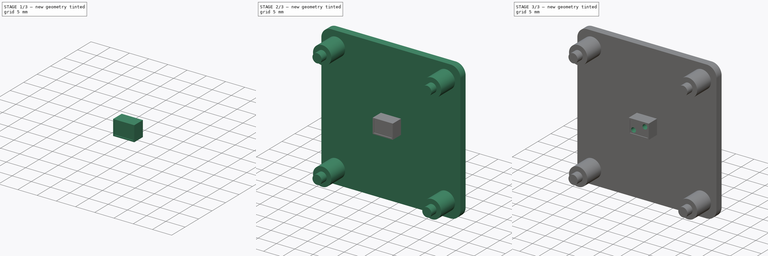
[diagram: build sequence overview — one tinted view per stage of 3, left to right]
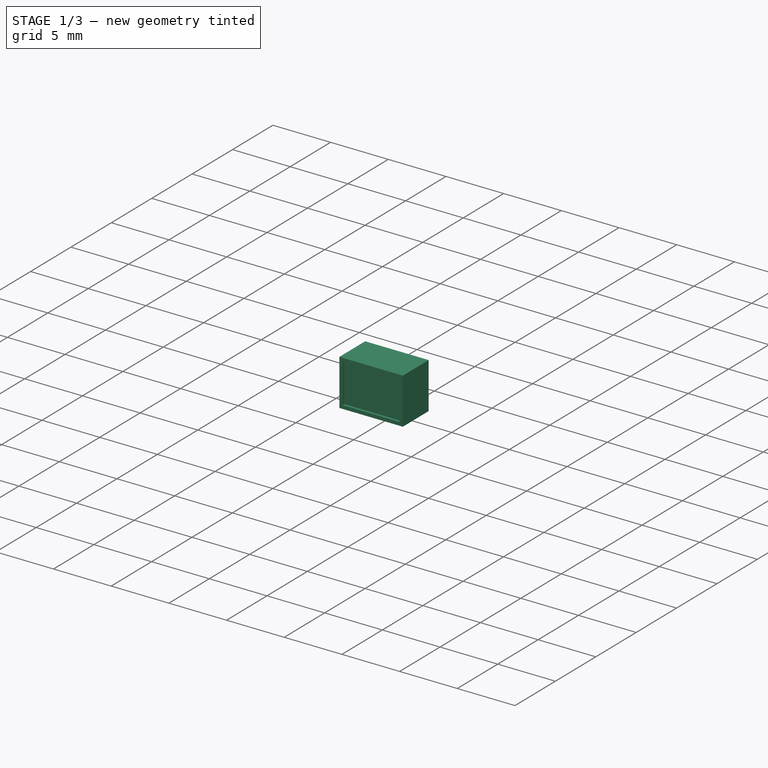
[diagram: stage 1 of 3 — iso view after this stage's code; geometry added in this stage tinted green]
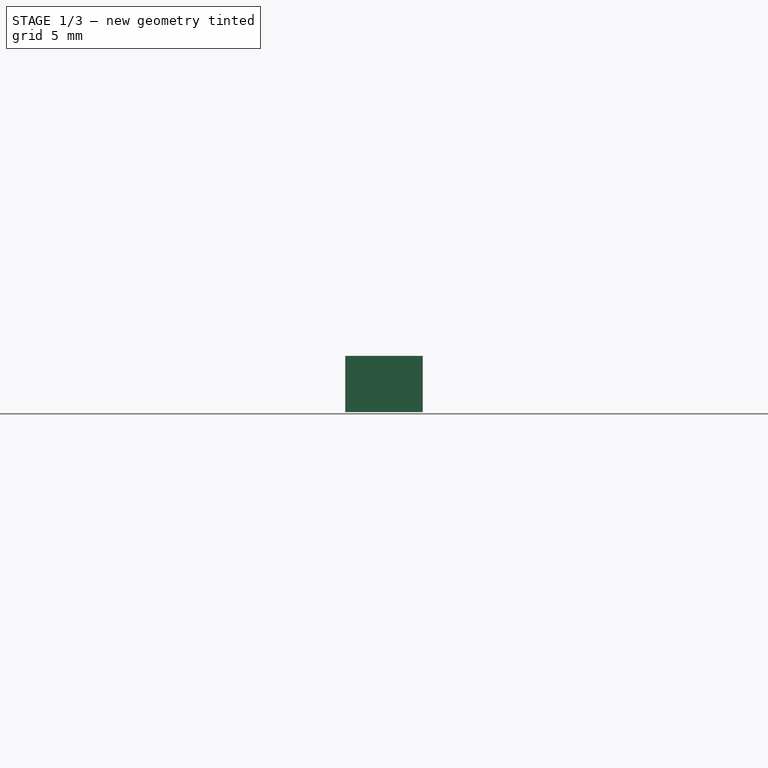
[diagram: stage 1 of 3 — front view after this stage's code; geometry added in this stage tinted green]
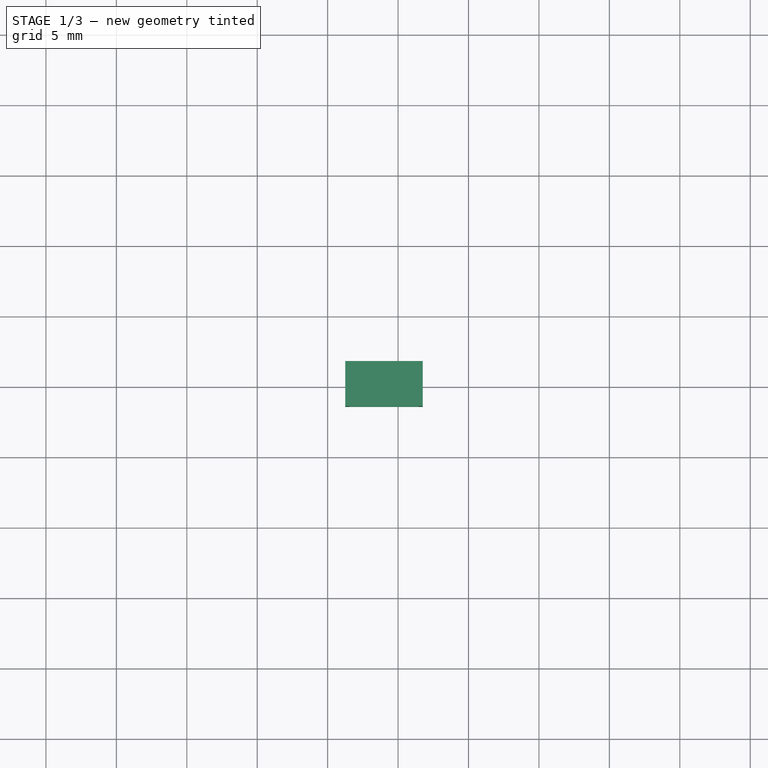
[diagram: stage 1 of 3 — top view after this stage's code; geometry added in this stage tinted green]
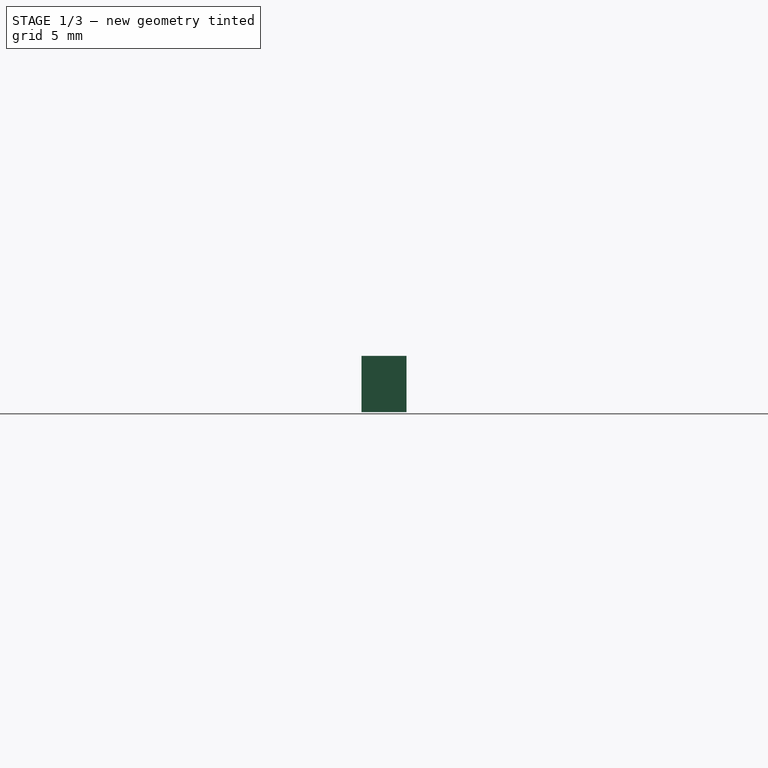
[diagram: stage 1 of 3 — right view after this stage's code; geometry added in this stage tinted green]
FCSTD DOCUMENT  (FreeCAD 1.0R39109 (Git))
Label: Flowcell3
License: All rights reserved
LicenseURL: http://en.wikipedia.org/wiki/All_rights_reserved
objects: Sketcher::SketchObject×9, Part::Feature×7, PartDesign::Pad×6, PartDesign::ShapeBinder×4, PartDesign::Pocket×1, PartDesign::Plane×1, PartDesign::Body×1, App::Part×1
note: 52 computed .brp shape members not serialized (recipe doc carries the construction recipe); baked Part::Feature solids carry a one-line shape summary decoded from their .brp

FEATURE [Part::Feature] Part__Feature  label="Raspberry Pi HQ Camera v2"
  shape: bbox 38 x 1.4 x 38 mm, 22 faces (baked)
FEATURE [Part::Feature] Part__Feature001  label="Raspberry Pi HQ Camera v003"
  shape: bbox 24 x 10.2 x 16.01 mm, 96 faces (baked)
FEATURE [Part::Feature] Part__Feature002  label="Raspberry Pi HQ Camera v004"
  shape: bbox 24 x 1.5 x 5.408 mm, 8 faces (baked)
FEATURE [Part::Feature] Part__Feature003  label="Raspberry Pi HQ Camera v005"
  shape: bbox 37.4 x 11.72 x 40.15 mm, 140 faces (baked)
FEATURE [Part::Feature] Part__Feature004  label="Raspberry Pi HQ Camera v006"
  shape: bbox 30.65 x 13.45 x 30.65 mm, 91 faces (baked)
FEATURE [Part::Feature] Part__Feature005  label="Raspberry Pi HQ Camera v007"
  shape: bbox 6.5 x 1 x 4.5 mm, 6 faces (baked)
FEATURE [Part::Feature] Part__Feature006  label="Raspberry Pi HQ Camera v008"
  shape: bbox 7.5 x 0.5 x 5.5 mm, 6 faces (baked)
FEATURE [PartDesign::ShapeBinder] CopyPart__Feature006
  TraceSupport = false
FEATURE [Sketcher::SketchObject] Sketch
  ArcFitTolerance = 1e-06
  AttachmentSupport = -> [CopyPart__Feature006]
  ExternalGeometry = -> [CopyPart__Feature006]
  FullyConstrained = true
  MakeInternals = false
  MapMode = 5
  Placement = pos=(0,3.6,0) rot=(0,0.707107,0.707107;3.14159rad)
  sketch-geometry (13):
    g0: GeomPoint X=-19 Y=21.75 Z=0
    g1: GeomPoint X=-22.75 Y=19 Z=0
    g2: GeomPoint X=-19 Y=19 Z=0
    g3: LineSegment StartX=-21.75 StartY=21 StartZ=0 EndX=-21.75 EndY=17 EndZ=0
    g4: LineSegment StartX=-21.75 StartY=17 StartZ=0 EndX=-16.25 EndY=17 EndZ=0
    g5: LineSegment StartX=-16.25 StartY=17 StartZ=0 EndX=-16.25 EndY=21 EndZ=0
    g6: LineSegment StartX=-16.25 StartY=21 StartZ=0 EndX=-21.75 EndY=21 EndZ=0
    g7: GeomPoint [constr] X=-19 Y=19 Z=0
    g8: LineSegment StartX=-21.45 StartY=20.7 StartZ=0 EndX=-21.45 EndY=17.3 EndZ=0
    g9: LineSegment StartX=-21.45 StartY=17.3 StartZ=0 EndX=-16.55 EndY=17.3 EndZ=0
    g10: LineSegment StartX=-16.55 StartY=17.3 StartZ=0 EndX=-16.55 EndY=20.7 EndZ=0
    g11: LineSegment StartX=-16.55 StartY=20.7 StartZ=0 EndX=-21.45 EndY=20.7 EndZ=0
    g12: GeomPoint [constr] X=-19 Y=19 Z=0
  constraints (28):
    c: Symmetric(g-3,g-3,g0)
    c: Symmetric(g-4,g-4,g1)
    c: Coincident(g3,g4)
    c: Coincident(g4,g5)
    c: Coincident(g5,g6)
    c: Coincident(g6,g3)
    c: Vertical(g3)
    c: Vertical(g5)
    c: Horizontal(g4)
    c: Horizontal(g6)
    c: Symmetric(g5,g3,g7)
    c: Coincident(g7,g2)
    c: DistanceX(g6,g6) = 5.5
    c: DistanceY(g3,g3) = 4
    c: Coincident(g8,g9)
    c: Coincident(g9,g10)
    c: Coincident(g10,g11)
    c: Coincident(g11,g8)
    c: Vertical(g8)
    c: Vertical(g10)
    c: Horizontal(g9)
    c: Horizontal(g11)
    c: Symmetric(g10,g8,g12)
    c: Coincident(g12,g2)
    c: Distance(g8,g3) = 0.3
    c: Distance(g11,g6) = 0.3
    c: Vertical(g0,g2)
    c: Horizontal(g1,g2)
FEATURE [PartDesign::ShapeBinder] ShapeBinder
  Support = -> [Part__Feature]
  TraceSupport = false
FEATURE [PartDesign::ShapeBinder] ShapeBinder001
  Support = -> [Part__Feature]
  TraceSupport = false
FEATURE [PartDesign::ShapeBinder] ShapeBinder002
  Support = -> [Part__Feature]
  TraceSupport = false
FEATURE [PartDesign::Pad] Pad
  Direction = (0,1,-2e-16)
  Length = 0.2
  Length2 = 10
  Profile = -> Sketch [Edge6,Edge2,Edge1,Edge5,Edge4,Edge8,Edge7,Edge3]
  ReferenceAxis = -> Sketch [N_Axis]
  Suppressed = false
  Type = 0
FEATURE [Sketcher::SketchObject] Sketch001
  ArcFitTolerance = 1e-06
  AttachmentSupport = -> [Pad]
  ExternalGeometry = -> [Pad]
  FullyConstrained = false
  MakeInternals = false
  MapMode = 5
  Placement = pos=(0,3.8,0) rot=(0,0.707107,0.707107;3.14159rad)
  sketch-geometry (3):
    g0: LineSegment StartX=-21.75 StartY=17 StartZ=0 EndX=-16.25 EndY=17 EndZ=0
    g1: LineSegment StartX=-16.25 StartY=17 StartZ=0 EndX=-16.25 EndY=21 EndZ=0
    g2: LineSegment StartX=-16.25 StartY=21 StartZ=0 EndX=-21.75 EndY=21 EndZ=0
  constraints (6):
    c: Coincident(g0,g1)
    c: Coincident(g1,g2)
    c: Vertical(g1)
    c: Horizontal(g0)
    c: Horizontal(g2)
    c: Coincident(g0,g-6)
FEATURE [PartDesign::Pad] Pad001
  BaseFeature = -> Pad
  Direction = (0,1,0)
  Length = 3
  Length2 = 10
  Profile = -> Pad [Edge12,Edge10,Edge7,Edge4]
  Suppressed = false
  Type = 0
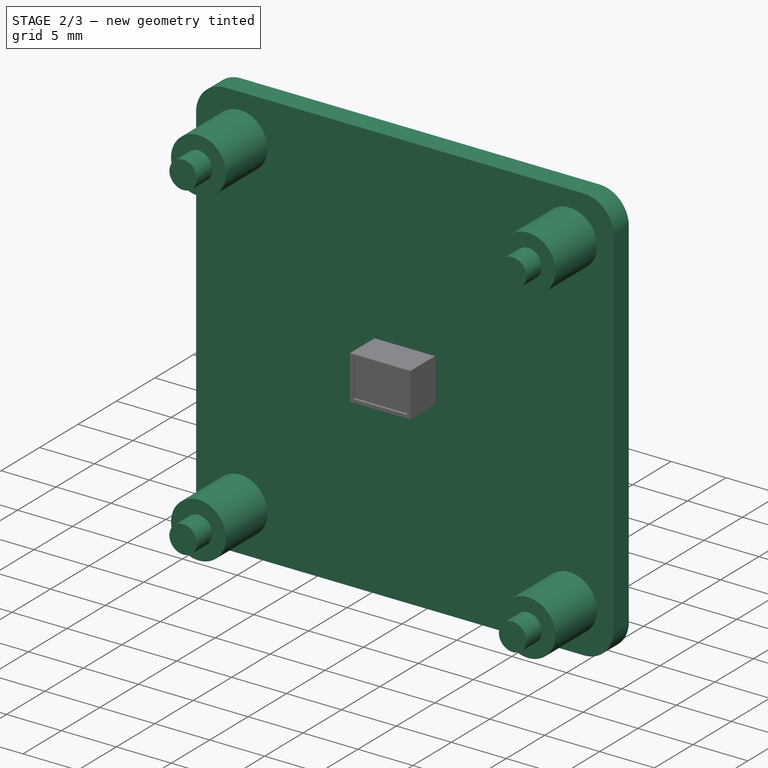
[diagram: stage 2 of 3 — iso view after this stage's code; geometry added in this stage tinted green]
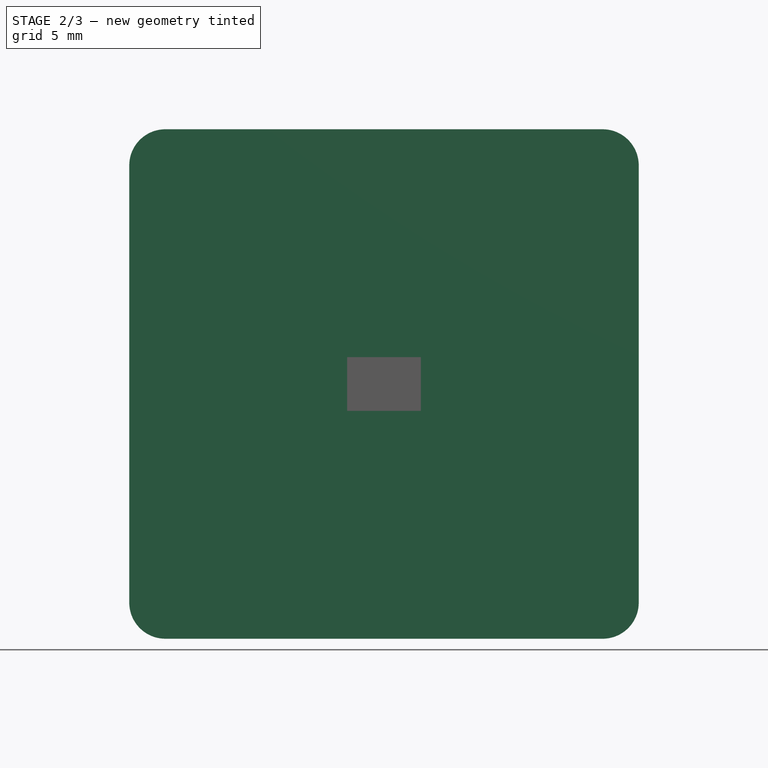
[diagram: stage 2 of 3 — front view after this stage's code; geometry added in this stage tinted green]
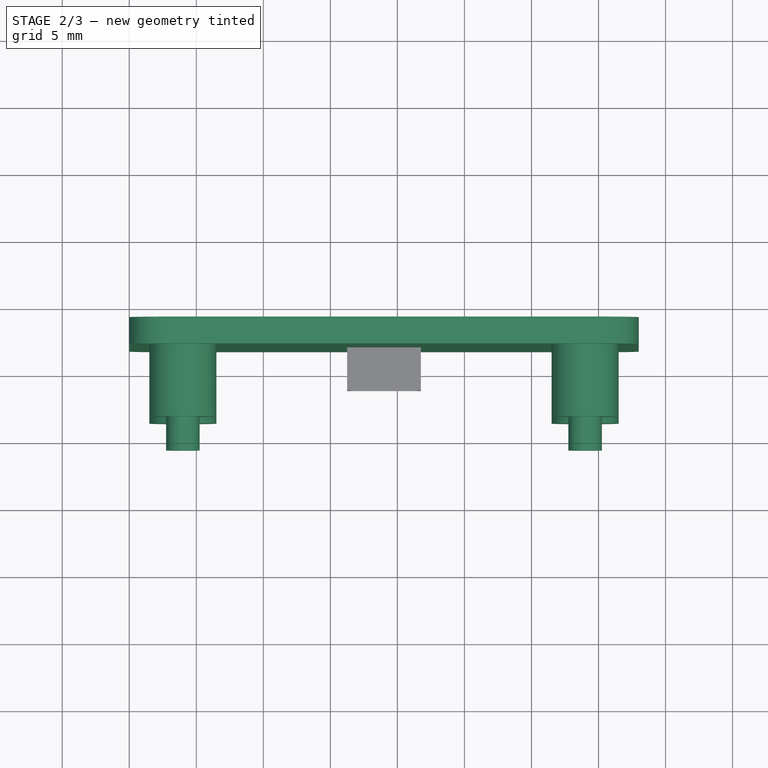
[diagram: stage 2 of 3 — top view after this stage's code; geometry added in this stage tinted green]
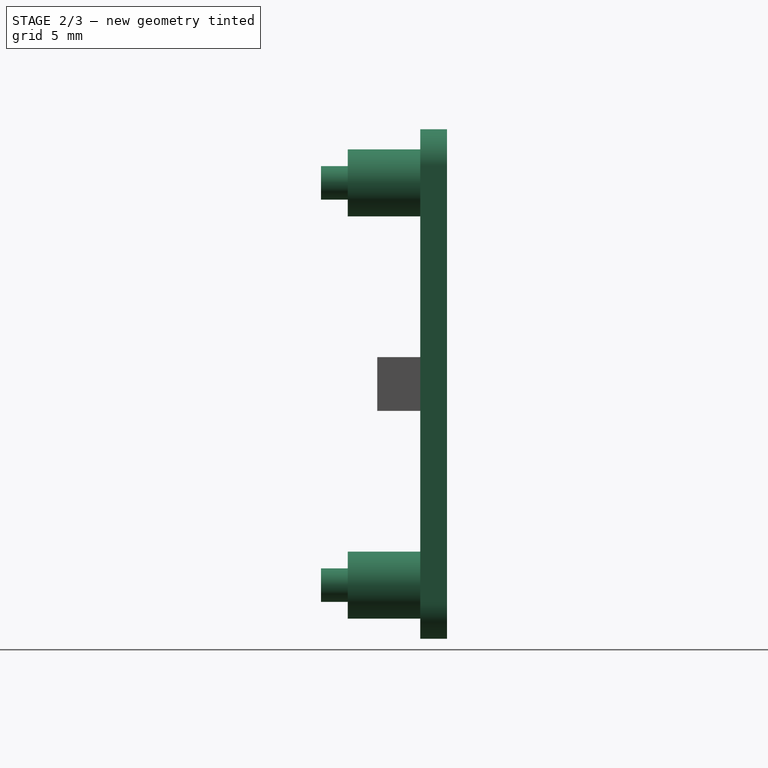
[diagram: stage 2 of 3 — right view after this stage's code; geometry added in this stage tinted green]
FEATURE [Sketcher::SketchObject] Sketch002
  ArcFitTolerance = 1e-06
  AttachmentSupport = -> [Pad001]
  FullyConstrained = true
  MakeInternals = false
  MapMode = 5
  Placement = pos=(0,6.8,0) rot=(0,0.707107,0.707107;3.14159rad)
FEATURE [Sketcher::SketchObject] Sketch003
  ArcFitTolerance = 1e-06
  AttachmentSupport = -> [Pad001]
  ExternalGeometry = -> [Pad001]
  FullyConstrained = false
  MakeInternals = false
  MapMode = 5
  Placement = pos=(0,6.8,0) rot=(0,0.707107,0.707107;3.14159rad)
  sketch-geometry (16):
    g0: LineSegment StartX=-38 StartY=35.3077 StartZ=0 EndX=-38 EndY=2.6923 EndZ=0
    g1: LineSegment StartX=-35.3077 StartY=4.707e-13 StartZ=0 EndX=-2.6923 EndY=4.707e-13 EndZ=0
    g2: LineSegment StartX=-4.707e-13 StartY=2.6923 StartZ=0 EndX=-4.707e-13 EndY=35.3077 EndZ=0
    g3: LineSegment StartX=-2.6923 StartY=38 StartZ=0 EndX=-35.3077 EndY=38 EndZ=0
    g4: GeomPoint [constr] X=-19 Y=19 Z=0
    g5: LineSegment StartX=-21.75 StartY=17 StartZ=0 EndX=-16.25 EndY=21 EndZ=0
    g6: LineSegment StartX=-21.75 StartY=21 StartZ=0 EndX=-16.25 EndY=17 EndZ=0
    g7: GeomPoint X=-19 Y=19 Z=0
    g8: ArcOfCircle CenterX=-2.6923 CenterY=35.3077 CenterZ=0 NormalX=0 NormalY=0 NormalZ=1 AngleXU=0 Radius=2.6923 StartAngle=-2.0615e-12 EndAngle=1.5708
    g9: GeomPoint [constr] X=0 Y=38 Z=0
    g10: ArcOfCircle CenterX=-35.3077 CenterY=35.3077 CenterZ=0 NormalX=0 NormalY=0 NormalZ=1 AngleXU=0 Radius=2.6923 StartAngle=1.5708 EndAngle=3.14159
    g11: GeomPoint [constr] X=-38 Y=38 Z=0
    g12: ArcOfCircle CenterX=-35.3077 CenterY=2.6923 CenterZ=0 NormalX=0 NormalY=0 NormalZ=1 AngleXU=0 Radius=2.6923 StartAngle=3.14159 EndAngle=4.71239
    g13: GeomPoint [constr] X=-38 Y=0 Z=0
    g14: ArcOfCircle CenterX=-2.6923 CenterY=2.6923 CenterZ=0 NormalX=0 NormalY=0 NormalZ=1 AngleXU=0 Radius=2.6923 StartAngle=4.71239 EndAngle=6.28319
    g15: GeomPoint [constr] X=0 Y=0 Z=0
  constraints (31):
    c: Vertical(g0)
    c: Vertical(g2)
    c: Horizontal(g1)
    c: Horizontal(g3)
    c: Symmetric(g15,g11,g4)
    c: Coincident(g15,g-1)
    c: Coincident(g5,g-6)
    c: Coincident(g5,g-4)
    c: Coincident(g6,g-6)
    c: Coincident(g6,g-5)
    c: Symmetric(g6,g6,g7)
    c: Coincident(g4,g7)
    c: PointOnObject(g9,g2)
    c: PointOnObject(g9,g3)
    c: Tangent(g2,g8) = -1.5708
    c: Tangent(g3,g8) = -1.5708
    c: PointOnObject(g11,g0)
    c: PointOnObject(g11,g3)
    c: Tangent(g0,g10) = -1.5708
    c: Tangent(g3,g10) = -1.5708
    c: PointOnObject(g13,g0)
    c: PointOnObject(g13,g1)
    c: Tangent(g0,g12) = -1.5708
    c: Tangent(g1,g12) = -1.5708
    c: Equal(g10,g8)
    c: Equal(g10,g12)
    c: PointOnObject(g15,g1)
    c: PointOnObject(g15,g2)
    c: Tangent(g1,g14) = -1.5708
    c: Tangent(g2,g14) = -1.5708
    c: Equal(g12,g14)
FEATURE [PartDesign::Pad] Pad002
  BaseFeature = -> Pad001
  Direction = (0,1,-2e-16)
  Length = 2
  Length2 = 10
  Profile = -> Sketch003 [Edge1,Edge8,Edge7,Edge6,Edge5,Edge4,Edge3,Edge2]
  ReferenceAxis = -> Sketch003 [N_Axis]
  Suppressed = false
  Type = 0
FEATURE [Sketcher::SketchObject] Sketch004
  ArcFitTolerance = 1e-06
  AttachmentSupport = -> [Pad002]
  ExternalGeometry = -> [ShapeBinder001,ShapeBinder]
  FullyConstrained = false
  MakeInternals = false
  MapMode = 5
  Placement = pos=(0,6.8,0) rot=(1,0,0;1.5708rad)
  sketch-geometry (8):
    g0: Circle CenterX=4 CenterY=34 CenterZ=0 NormalX=0 NormalY=0 NormalZ=1 AngleXU=0 Radius=2.5
    g1: Circle CenterX=34 CenterY=34 CenterZ=0 NormalX=0 NormalY=0 NormalZ=1 AngleXU=0 Radius=2.5
    g2: Circle CenterX=4 CenterY=4 CenterZ=0 NormalX=0 NormalY=0 NormalZ=1 AngleXU=0 Radius=2.5
    g3: Circle CenterX=34 CenterY=4 CenterZ=0 NormalX=0 NormalY=0 NormalZ=1 AngleXU=0 Radius=2.5
    g4: Circle CenterX=34 CenterY=34 CenterZ=0 NormalX=0 NormalY=0 NormalZ=1 AngleXU=0 Radius=1.25
    g5: Circle CenterX=4 CenterY=34 CenterZ=0 NormalX=0 NormalY=0 NormalZ=1 AngleXU=0 Radius=1.25
    g6: Circle CenterX=4 CenterY=4 CenterZ=0 NormalX=0 NormalY=0 NormalZ=1 AngleXU=0 Radius=1.25
    g7: Circle CenterX=34 CenterY=4 CenterZ=0 NormalX=0 NormalY=0 NormalZ=1 AngleXU=0 Radius=1.25
  constraints (15):
    c: Coincident(g0,g-3)
    c: Equal(g0,g-3)
    c: Coincident(g1,g-4)
    c: Equal(g1,g-4)
    c: Coincident(g2,g-6)
    c: Equal(g2,g-6)
    c: Diameter(g4) = 2.5
    c: Coincident(g4,g1)
    c: Coincident(g5,g0)
    c: Coincident(g6,g2)
    c: Coincident(g7,g3)
    c: Equal(g4,g5)
    c: Equal(g5,g6)
    c: Equal(g5,g7)
    c: Equal(g3,g2)
FEATURE [PartDesign::Pad] Pad003
  BaseFeature = -> Pad002
  Direction = (0,-1,2e-16)
  Length = 5.4
  Length2 = 10
  Profile = -> Sketch004 [Edge4,Edge3,Edge1,Edge2]
  ReferenceAxis = -> Sketch004 [N_Axis]
  Suppressed = false
  Type = 0
FEATURE [Sketcher::SketchObject] Sketch005
  ArcFitTolerance = 1e-06
  AttachmentSupport = -> [Pad003]
  ExternalGeometry = -> [ShapeBinder]
  FullyConstrained = true
  MakeInternals = false
  MapMode = 5
  Placement = pos=(0,1.4,-3e-16) rot=(1,0,0;1.5708rad)
  sketch-geometry (4):
    g0: Circle CenterX=4 CenterY=34 CenterZ=0 NormalX=0 NormalY=0 NormalZ=1 AngleXU=0 Radius=1.25
    g1: Circle CenterX=34 CenterY=34 CenterZ=0 NormalX=0 NormalY=0 NormalZ=1 AngleXU=0 Radius=1.25
    g2: Circle CenterX=4 CenterY=4 CenterZ=0 NormalX=0 NormalY=0 NormalZ=1 AngleXU=0 Radius=1.25
    g3: Circle CenterX=34 CenterY=4 CenterZ=0 NormalX=0 NormalY=0 NormalZ=1 AngleXU=0 Radius=1.25
  constraints (8):
    c: Coincident(g0,g-3)
    c: Equal(g0,g-3)
    c: Coincident(g1,g-4)
    c: Coincident(g2,g-6)
    c: Coincident(g3,g-5)
    c: Equal(g0,g1)
    c: Equal(g0,g2)
    c: Equal(g0,g3)
FEATURE [PartDesign::Pad] Pad004
  BaseFeature = -> Pad003
  Direction = (0,-1,2e-16)
  Length = 2
  Length2 = 10
  Profile = -> Sketch005
  ReferenceAxis = -> Sketch005 [N_Axis]
  Suppressed = false
  Type = 0
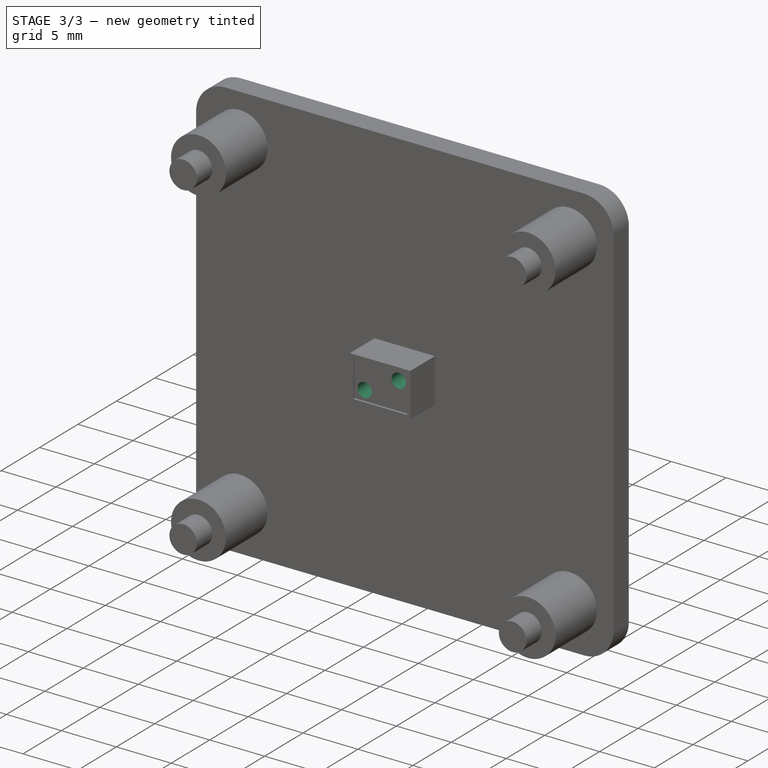
[diagram: stage 3 of 3 — iso view after this stage's code; geometry added in this stage tinted green]
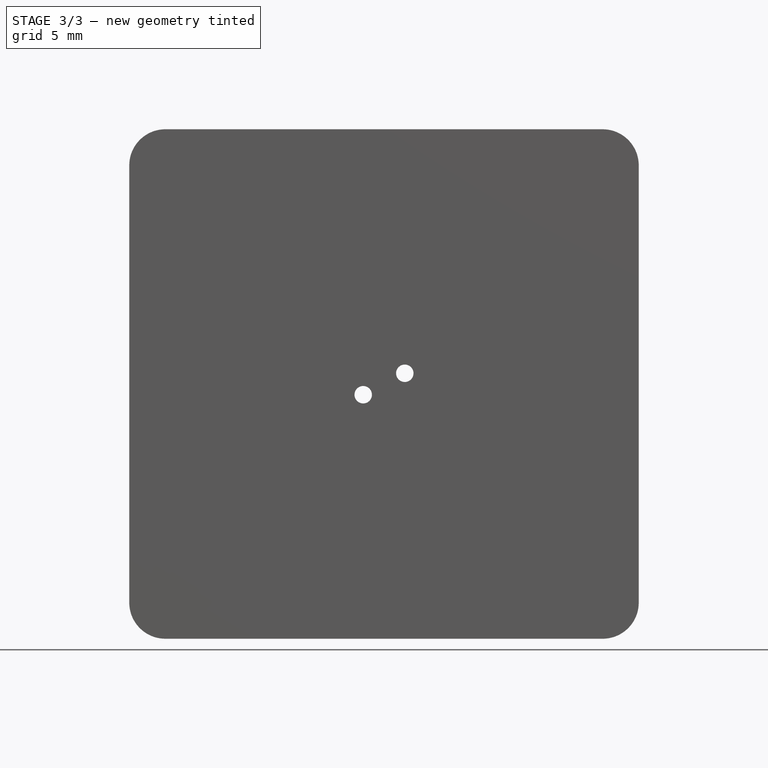
[diagram: stage 3 of 3 — front view after this stage's code; geometry added in this stage tinted green]
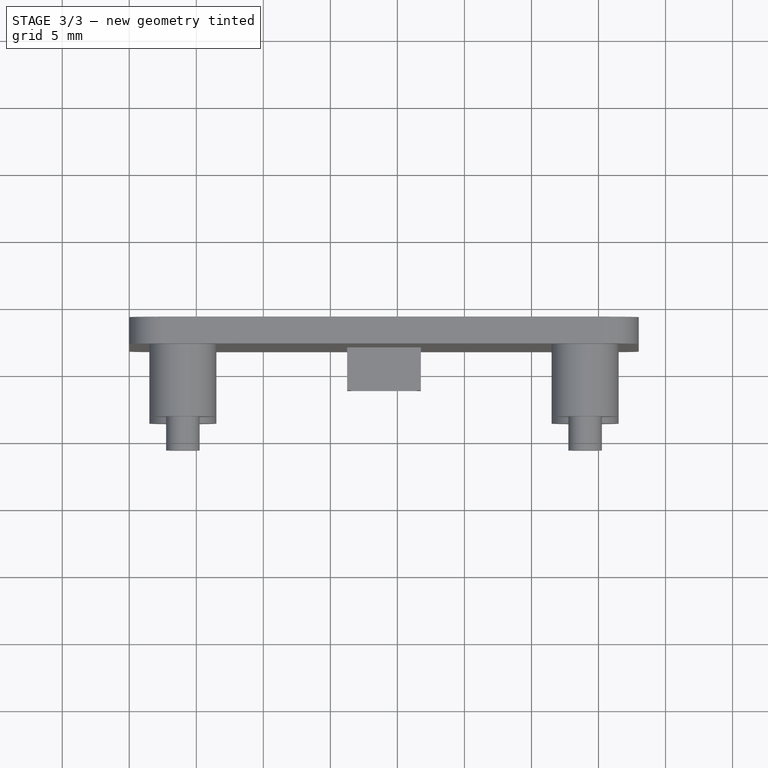
[diagram: stage 3 of 3 — top view after this stage's code; geometry added in this stage tinted green]
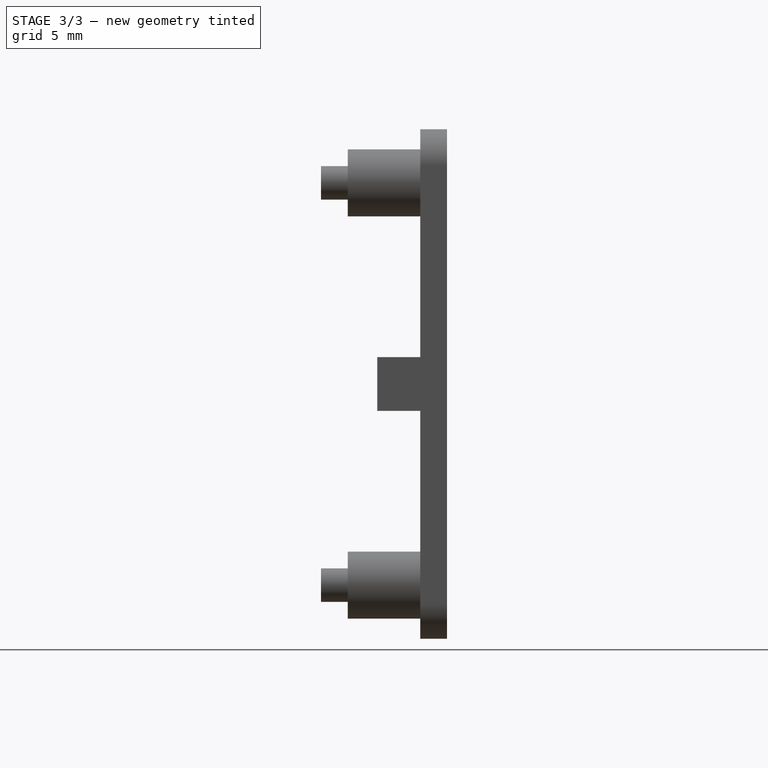
[diagram: stage 3 of 3 — right view after this stage's code; geometry added in this stage tinted green]
FEATURE [Sketcher::SketchObject] Sketch006
  ArcFitTolerance = 1e-06
  AttachmentSupport = -> [Pad003]
  FullyConstrained = true
  MakeInternals = false
  MapMode = 5
  Placement = pos=(0,8.8,0) rot=(0,0.707107,0.707107;3.14159rad)
FEATURE [Sketcher::SketchObject] Sketch007
  ArcFitTolerance = 1e-06
  AttachmentSupport = -> [Pad004]
  ExternalGeometry = -> [Pad004]
  FullyConstrained = true
  MakeInternals = false
  MapMode = 5
  Placement = pos=(0,3.8,0) rot=(1,0,0;1.5708rad)
  sketch-geometry (2):
    g0: Circle CenterX=20.55 CenterY=19.8 CenterZ=0 NormalX=0 NormalY=0 NormalZ=1 AngleXU=0 Radius=0.65
    g1: Circle CenterX=17.45 CenterY=18.2 CenterZ=0 NormalX=0 NormalY=0 NormalZ=1 AngleXU=0 Radius=0.65
  constraints (6):
    c: Diameter(g0) = 1.3
    c: Equal(g0,g1)
    c: Distance(g1,g-10) = 1.2
    c: Distance(g1,g-9) = 1.2
    c: Distance(g0,g-7) = 1.2
    c: Distance(g0,g-8) = 1.2
FEATURE [PartDesign::Pocket] Pocket
  BaseFeature = -> Pad004
  Direction = (0,1,-2e-16)
  Length = 5
  Length2 = 5
  Profile = -> Sketch007
  ReferenceAxis = -> Sketch007 [N_Axis]
  Suppressed = false
  Type = 0
FEATURE [PartDesign::Plane] DatumPlane
  AttachmentSupport = -> [Pocket]
  Length = 75.6
  MapMode = 5
  Placement = pos=(0,3.8,0) rot=(1,0,0;1.5708rad)
  ResizeMode = 0
  Width = 75.6
FEATURE [Sketcher::SketchObject] Sketch008
  ArcFitTolerance = 1e-06
  AttachmentSupport = -> [Pocket]
  ExternalGeometry = -> [Pocket]
  FullyConstrained = true
  MakeInternals = false
  MapMode = 5
  Placement = pos=(0,3.8,0) rot=(1,0,0;1.5708rad)
  sketch-geometry (8):
    g0: LineSegment StartX=16.25 StartY=21 StartZ=0 EndX=16.25 EndY=17 EndZ=0
    g1: LineSegment StartX=16.25 StartY=17 StartZ=0 EndX=21.75 EndY=17 EndZ=0
    g2: LineSegment StartX=21.75 StartY=17 StartZ=0 EndX=21.75 EndY=21 EndZ=0
    g3: LineSegment StartX=21.75 StartY=21 StartZ=0 EndX=16.25 EndY=21 EndZ=0
    g4: LineSegment StartX=16.55 StartY=20.7 StartZ=0 EndX=16.55 EndY=17.3 EndZ=0
    g5: LineSegment StartX=16.55 StartY=17.3 StartZ=0 EndX=21.45 EndY=17.3 EndZ=0
    g6: LineSegment StartX=21.45 StartY=17.3 StartZ=0 EndX=21.45 EndY=20.7 EndZ=0
    g7: LineSegment StartX=21.45 StartY=20.7 StartZ=0 EndX=16.55 EndY=20.7 EndZ=0
  constraints (20):
    c: Coincident(g0,g1)
    c: Coincident(g1,g2)
    c: Coincident(g2,g3)
    c: Coincident(g3,g0)
    c: Vertical(g0)
    c: Vertical(g2)
    c: Horizontal(g1)
    c: Horizontal(g3)
    c: Coincident(g0,g-5)
    c: Coincident(g1,g-6)
    c: Coincident(g4,g5)
    c: Coincident(g5,g6)
    c: Coincident(g6,g7)
    c: Coincident(g7,g4)
    c: Vertical(g4)
    c: Vertical(g6)
    c: Horizontal(g5)
    c: Horizontal(g7)
    c: Coincident(g4,g-9)
    c: Coincident(g5,g-10)
FEATURE [PartDesign::Pad] Pad005
  BaseFeature = -> Pocket
  Direction = (0,-1,2e-16)
  Length = 0.2
  Length2 = 10
  Profile = -> Sketch008
  ReferenceAxis = -> Sketch008 [N_Axis]
  Suppressed = false
  Type = 0
FEATURE [PartDesign::Body] Body
  AllowCompound = false
  Group = -> [CopyPart__Feature006,Sketch,Pad,Sketch001,Pad001,Sketch002,ShapeBinder,Sketch003,Pad002,ShapeBinder001,Sketch004,ShapeBinder002,Pad003,Sketch005,Pad004,Sketch006,Sketch007,Pocket,DatumPlane,Sketch008,Pad005]
  Origin = -> Origin001
  Tip = -> Pad005
FEATURE [App::Part] Raspberry_Pi_HQ_Camera_v2  label="Raspberry Pi HQ Camera v009"
  Group = -> [Part__Feature,Part__Feature001,Part__Feature002,Part__Feature003,Part__Feature004,Part__Feature005,Part__Feature006,Body]
  Origin = -> Origin
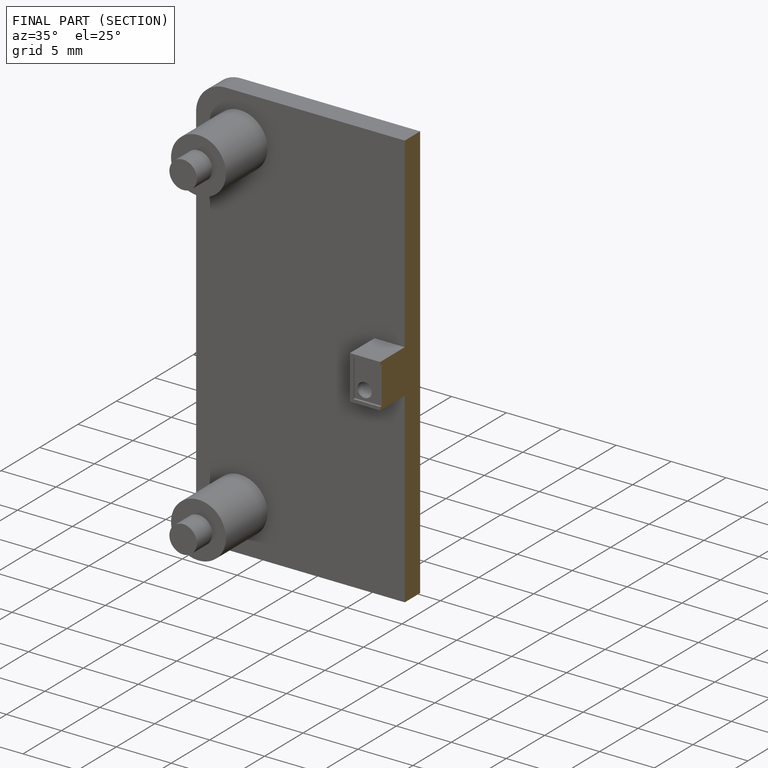
[diagram: finished part — half-section view (interior)]
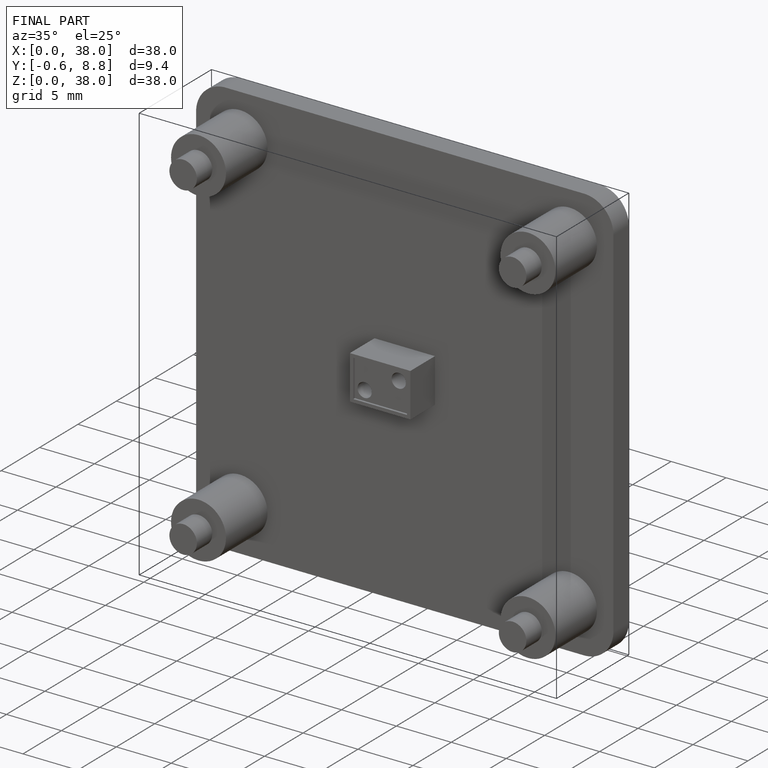
[diagram: finished part — iso view with bounding-box wireframe]
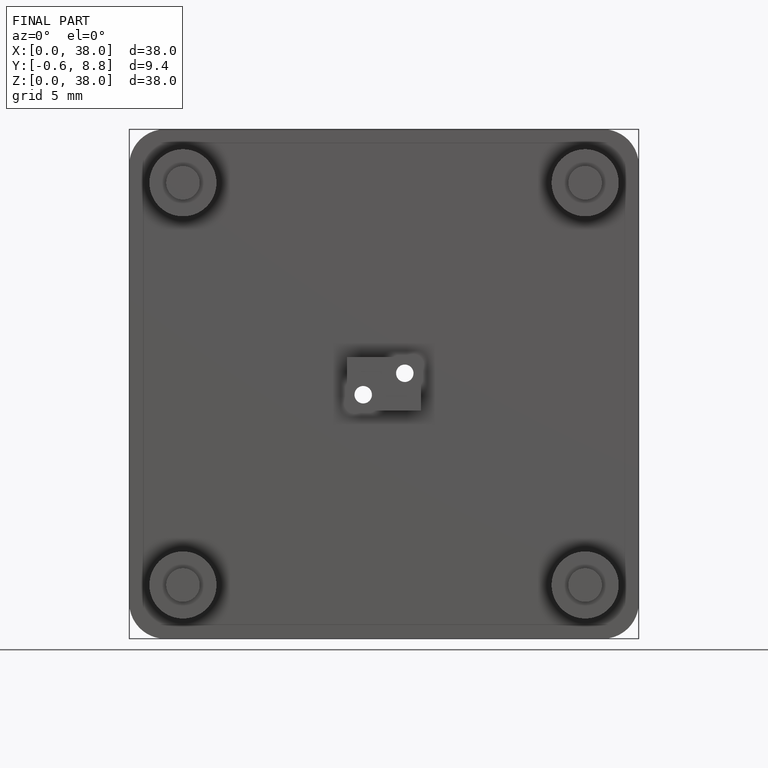
[diagram: finished part — front view with bounding-box wireframe]
